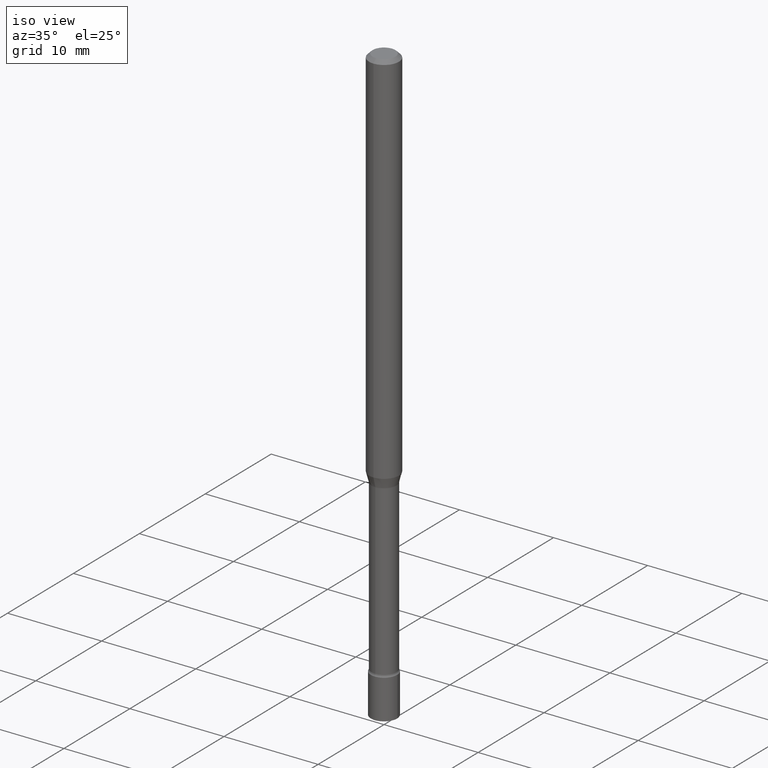
[diagram: clean part render]
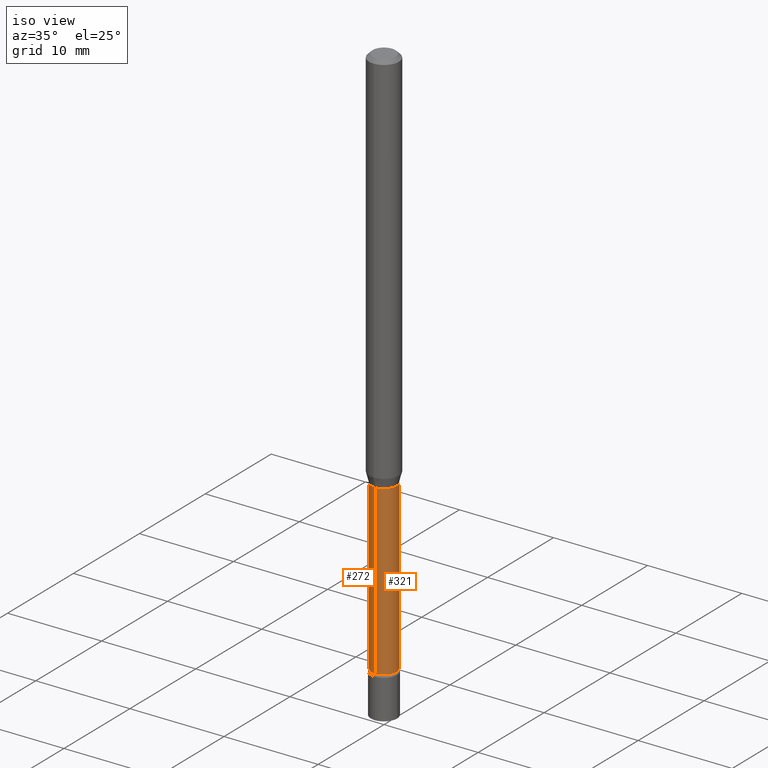
[diagram: same view with one multi-face feature highlighted, each face labeled with its STEP entity id]
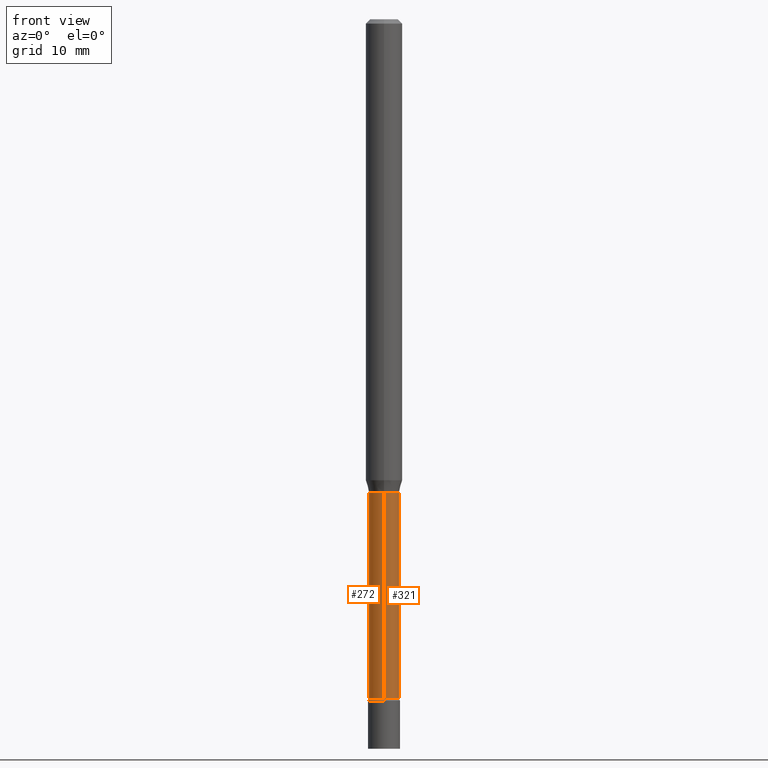
[diagram: same view with one multi-face feature highlighted, each face labeled with its STEP entity id]
A machine part, iso view. The highlighted faces form ONE feature: a constant-radius fillet chain: 2 tangent blend faces with common blend radius 1.3132 mm. The faces share edges in the B-rep.
A second angle (front view) of the same feature is appended — it is thin or edge-on in the first view.
Their STEP definitions:
[1] entity #272 (Cylinder):
#34 = DIRECTION ( 'NONE',  ( -6.982962677686265922E-15, -1.000000000000000000, 5.284038672464724125E-15 ) ) ;
#35 = VERTEX_POINT ( 'NONE', #166 ) ;
#37 = EDGE_LOOP ( 'NONE', ( #370, #354, #116, #279 ) ) ;
#46 = DIRECTION ( 'NONE',  ( -2.445374897703533178E-29, 3.491615821133740725E-15, 1.000000000000000000 ) ) ;
#63 = CARTESIAN_POINT ( 'NONE',  ( -3.610191704363403633E-16, -0.05170000000000567891, -1.621974787463810852 ) ) ;
#73 = DIRECTION ( 'NONE',  ( -2.445374897703533178E-29, 3.491615821133740331E-15, 1.000000000000000000 ) ) ;
#107 = LINE ( 'NONE', #358, #519 ) ;
#109 = DIRECTION ( 'NONE',  ( -2.445374897703533178E-29, 3.491615821133740725E-15, 1.000000000000000000 ) ) ;
#116 = ORIENTED_EDGE ( 'NONE', *, *, #297, .T. ) ;
#146 = CARTESIAN_POINT ( 'NONE',  ( 3.673505943880288612E-16, 0.05169999999999435464, -1.621974787463811518 ) ) ;
#150 = CYLINDRICAL_SURFACE ( 'NONE', #163, 0.05170000000000001678 ) ;
#156 = CARTESIAN_POINT ( 'NONE',  ( 0.000000000000000000, 0.000000000000000000, 0.000000000000000000 ) ) ;
#158 = DIRECTION ( 'NONE',  ( -2.445374897703533178E-29, 3.491615821133740331E-15, 1.000000000000000000 ) ) ;
#163 = AXIS2_PLACEMENT_3D ( 'NONE', #156, #387, #428 ) ;
#166 = CARTESIAN_POINT ( 'NONE',  ( -3.610191704363231562E-16, -0.05170000000000813528, -2.325613307291702458 ) ) ;
#193 = LINE ( 'NONE', #423, #206 ) ;
#196 = FACE_OUTER_BOUND ( 'NONE', #37, .T. ) ;
#205 = VERTEX_POINT ( 'NONE', #146 ) ;
#206 = VECTOR ( 'NONE', #158, 39.37007874015748143 ) ;
#241 = EDGE_CURVE ( 'NONE', #375, #35, #327, .T. ) ;
#255 = AXIS2_PLACEMENT_3D ( 'NONE', #347, #109, #34 ) ;
#256 = AXIS2_PLACEMENT_3D ( 'NONE', #369, #46, #371 ) ;
#272 = ADVANCED_FACE ( 'NONE', ( #196 ), #150, .T. ) ;
#279 = ORIENTED_EDGE ( 'NONE', *, *, #490, .F. ) ;
#297 = EDGE_CURVE ( 'NONE', #35, #372, #107, .T. ) ;
#327 = CIRCLE ( 'NONE', #255, 0.05170000000000001678 ) ;
#331 = EDGE_CURVE ( 'NONE', #375, #205, #193, .T. ) ;
#347 = CARTESIAN_POINT ( 'NONE',  ( 5.686996403416423318E-29, -8.120148217578873415E-15, -2.325613307291702903 ) ) ;
#353 = CARTESIAN_POINT ( 'NONE',  ( 3.790745495280706529E-16, 0.05169999999999189827, -2.325613307291702903 ) ) ;
#354 = ORIENTED_EDGE ( 'NONE', *, *, #241, .T. ) ;
#358 = CARTESIAN_POINT ( 'NONE',  ( -3.610191704363800528E-16, -0.05170000000000001678, 1.805165379526144466E-16 ) ) ;
#369 = CARTESIAN_POINT ( 'NONE',  ( 3.966336429972027032E-29, -5.663312829388678949E-15, -1.621974787463811296 ) ) ;
#370 = ORIENTED_EDGE ( 'NONE', *, *, #331, .F. ) ;
#371 = DIRECTION ( 'NONE',  ( -6.982962677686265922E-15, -1.000000000000000000, 5.284038672464724125E-15 ) ) ;
#372 = VERTEX_POINT ( 'NONE', #63 ) ;
#375 = VERTEX_POINT ( 'NONE', #353 ) ;
#387 = DIRECTION ( 'NONE',  ( -2.445374897703533178E-29, 3.491615821133740725E-15, 1.000000000000000000 ) ) ;
#423 = CARTESIAN_POINT ( 'NONE',  ( 3.673505943879718660E-16, 0.05170000000000001678, -1.805165379526144466E-16 ) ) ;
#428 = DIRECTION ( 'NONE',  ( -6.982962677686265922E-15, -1.000000000000000000, 3.491615821133740725E-15 ) ) ;
#490 = EDGE_CURVE ( 'NONE', #205, #372, #497, .T. ) ;
#497 = CIRCLE ( 'NONE', #256, 0.05170000000000001678 ) ;
#519 = VECTOR ( 'NONE', #73, 39.37007874015748143 ) ;
[2] entity #321 (Cylinder):
#19 = CARTESIAN_POINT ( 'NONE',  ( 3.966336429972027032E-29, -5.663312829388678949E-15, -1.621974787463811296 ) ) ;
#27 = AXIS2_PLACEMENT_3D ( 'NONE', #309, #147, #75 ) ;
#35 = VERTEX_POINT ( 'NONE', #166 ) ;
#42 = AXIS2_PLACEMENT_3D ( 'NONE', #208, #288, #161 ) ;
#63 = CARTESIAN_POINT ( 'NONE',  ( -3.610191704363403633E-16, -0.05170000000000567891, -1.621974787463810852 ) ) ;
#66 = CIRCLE ( 'NONE', #42, 0.05170000000000001678 ) ;
#71 = FACE_OUTER_BOUND ( 'NONE', #80, .T. ) ;
#73 = DIRECTION ( 'NONE',  ( -2.445374897703533178E-29, 3.491615821133740331E-15, 1.000000000000000000 ) ) ;
#75 = DIRECTION ( 'NONE',  ( -6.982962677686265922E-15, -1.000000000000000000, 3.491615821133740725E-15 ) ) ;
#80 = EDGE_LOOP ( 'NONE', ( #393, #111, #410, #190 ) ) ;
#101 = DIRECTION ( 'NONE',  ( -6.982962677686265922E-15, -1.000000000000000000, 5.284038672464724125E-15 ) ) ;
#107 = LINE ( 'NONE', #358, #519 ) ;
#111 = ORIENTED_EDGE ( 'NONE', *, *, #331, .T. ) ;
#128 = CIRCLE ( 'NONE', #282, 0.05170000000000001678 ) ;
#146 = CARTESIAN_POINT ( 'NONE',  ( 3.673505943880288612E-16, 0.05169999999999435464, -1.621974787463811518 ) ) ;
#147 = DIRECTION ( 'NONE',  ( -2.445374897703533178E-29, 3.491615821133740725E-15, 1.000000000000000000 ) ) ;
#158 = DIRECTION ( 'NONE',  ( -2.445374897703533178E-29, 3.491615821133740331E-15, 1.000000000000000000 ) ) ;
#161 = DIRECTION ( 'NONE',  ( -6.982962677686265922E-15, -1.000000000000000000, 5.284038672464724125E-15 ) ) ;
#166 = CARTESIAN_POINT ( 'NONE',  ( -3.610191704363231562E-16, -0.05170000000000813528, -2.325613307291702458 ) ) ;
#190 = ORIENTED_EDGE ( 'NONE', *, *, #297, .F. ) ;
#193 = LINE ( 'NONE', #423, #206 ) ;
#195 = EDGE_CURVE ( 'NONE', #372, #205, #128, .T. ) ;
#205 = VERTEX_POINT ( 'NONE', #146 ) ;
#206 = VECTOR ( 'NONE', #158, 39.37007874015748143 ) ;
#208 = CARTESIAN_POINT ( 'NONE',  ( 5.686996403416423318E-29, -8.120148217578873415E-15, -2.325613307291702903 ) ) ;
#254 = DIRECTION ( 'NONE',  ( -2.445374897703533178E-29, 3.491615821133740725E-15, 1.000000000000000000 ) ) ;
#269 = CYLINDRICAL_SURFACE ( 'NONE', #27, 0.05170000000000001678 ) ;
#282 = AXIS2_PLACEMENT_3D ( 'NONE', #19, #254, #101 ) ;
#288 = DIRECTION ( 'NONE',  ( -2.445374897703533178E-29, 3.491615821133740725E-15, 1.000000000000000000 ) ) ;
#297 = EDGE_CURVE ( 'NONE', #35, #372, #107, .T. ) ;
#309 = CARTESIAN_POINT ( 'NONE',  ( 0.000000000000000000, 0.000000000000000000, 0.000000000000000000 ) ) ;
#321 = ADVANCED_FACE ( 'NONE', ( #71 ), #269, .T. ) ;
#331 = EDGE_CURVE ( 'NONE', #375, #205, #193, .T. ) ;
#353 = CARTESIAN_POINT ( 'NONE',  ( 3.790745495280706529E-16, 0.05169999999999189827, -2.325613307291702903 ) ) ;
#358 = CARTESIAN_POINT ( 'NONE',  ( -3.610191704363800528E-16, -0.05170000000000001678, 1.805165379526144466E-16 ) ) ;
#372 = VERTEX_POINT ( 'NONE', #63 ) ;
#375 = VERTEX_POINT ( 'NONE', #353 ) ;
#393 = ORIENTED_EDGE ( 'NONE', *, *, #482, .T. ) ;
#410 = ORIENTED_EDGE ( 'NONE', *, *, #195, .F. ) ;
#423 = CARTESIAN_POINT ( 'NONE',  ( 3.673505943879718660E-16, 0.05170000000000001678, -1.805165379526144466E-16 ) ) ;
#482 = EDGE_CURVE ( 'NONE', #35, #375, #66, .T. ) ;
#519 = VECTOR ( 'NONE', #73, 39.37007874015748143 ) ;